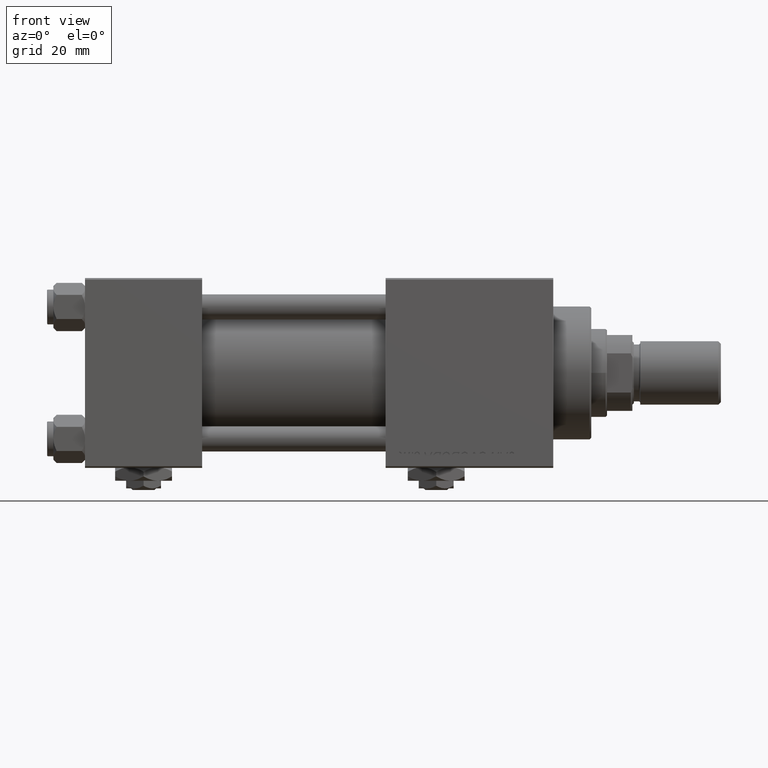
[diagram: clean part render]
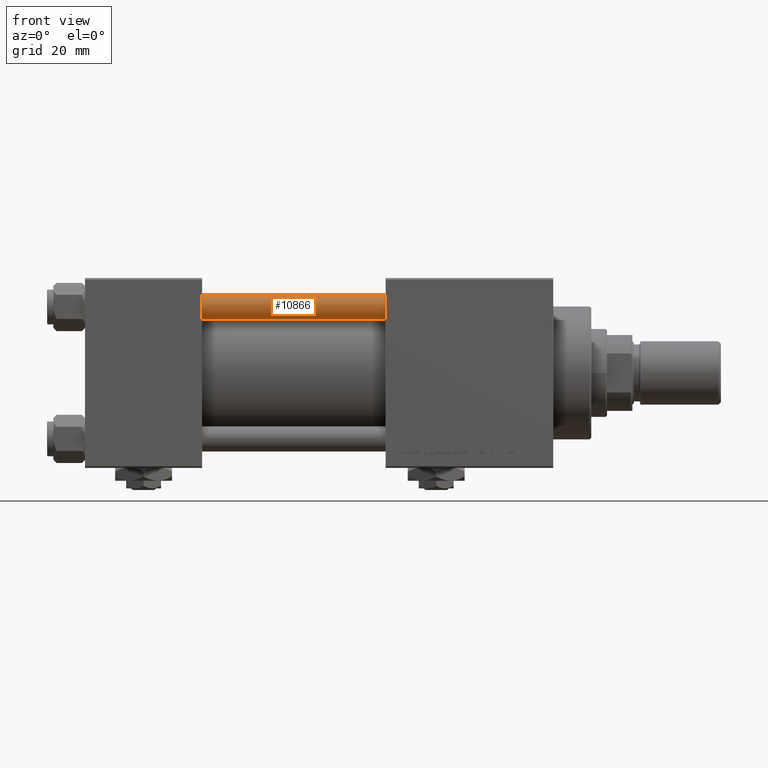
[diagram: same view with one face highlighted and labeled with its STEP entity id]
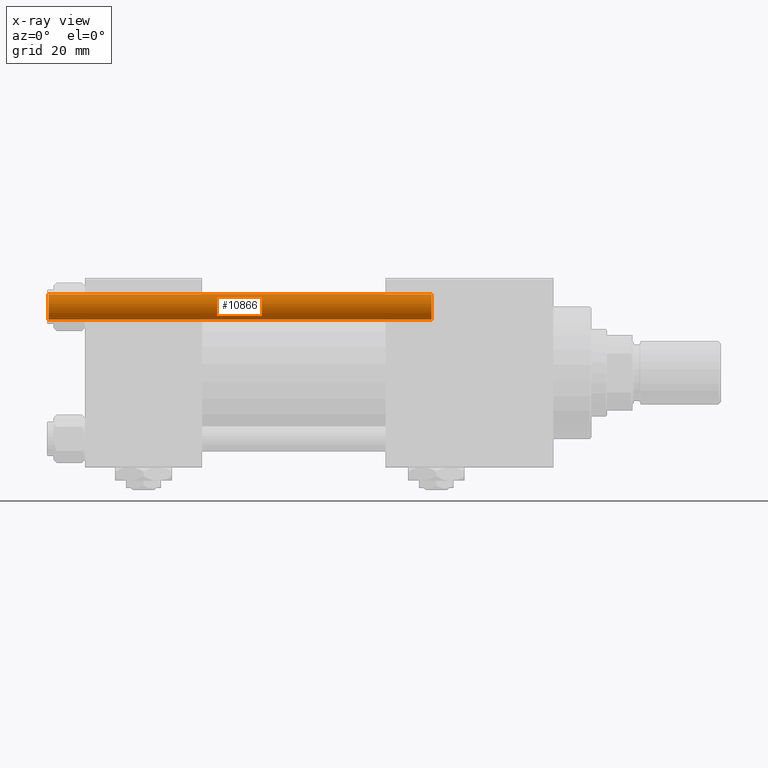
[diagram: x-ray of the same camera — body ghosted, the highlighted face saturated]
A machine part, front view. The second image highlights one B-rep face of the part: STEP entity #10866.
The next image is the same camera in x-ray: the body ghosted, the highlighted face saturated — about 0% of this face is hidden behind the body in this view.
In plain terms, the highlighted cylindrical surface (edge-blend (fillet) strip) has radius 4 mm, axis along (1, 0, -0).
Its self-contained STEP definition (entity closure, byte-faithful):
#334 = DIRECTION ( 'NONE',  ( -0.000000000000000000, -0.000000000000000000, -1.000000000000000000 ) ) ;
#1388 = LINE ( 'NONE', #38197, #12351 ) ;
#2967 = EDGE_CURVE ( 'NONE', #37447, #52659, #36098, .T. ) ;
#3065 = CARTESIAN_POINT ( 'NONE',  ( 0.000000000000000000, 0.000000000000000000, 121.5000000000000426 ) ) ;
#5255 = CARTESIAN_POINT ( 'NONE',  ( -4.000000000000000000, 0.000000000000000000, 121.5000000000000426 ) ) ;
#5290 = ORIENTED_EDGE ( 'NONE', *, *, #31048, .T. ) ;
#5576 = DIRECTION ( 'NONE',  ( -0.000000000000000000, -0.000000000000000000, -1.000000000000000000 ) ) ;
#6194 = CIRCLE ( 'NONE', #20681, 4.000000000000000000 ) ;
#6314 = DIRECTION ( 'NONE',  ( 1.000000000000000000, 0.000000000000000000, 0.000000000000000000 ) ) ;
#6422 = AXIS2_PLACEMENT_3D ( 'NONE', #33350, #5576, #29335 ) ;
#8869 = DIRECTION ( 'NONE',  ( -0.000000000000000000, -0.000000000000000000, -1.000000000000000000 ) ) ;
#9585 = FACE_OUTER_BOUND ( 'NONE', #37872, .T. ) ;
#10585 = DIRECTION ( 'NONE',  ( -0.000000000000000000, -0.000000000000000000, 1.000000000000000000 ) ) ;
#10866 = ADVANCED_FACE ( 'NONE', ( #9585 ), #25861, .T. ) ;
#12351 = VECTOR ( 'NONE', #8869, 1000.000000000000000 ) ;
#13829 = ORIENTED_EDGE ( 'NONE', *, *, #49500, .T. ) ;
#16994 = AXIS2_PLACEMENT_3D ( 'NONE', #42868, #10585, #6314 ) ;
#18843 = VERTEX_POINT ( 'NONE', #28423 ) ;
#20681 = AXIS2_PLACEMENT_3D ( 'NONE', #3065, #40133, #23869 ) ;
#23869 = DIRECTION ( 'NONE',  ( 1.000000000000000000, 0.000000000000000000, 0.000000000000000000 ) ) ;
#23880 = CARTESIAN_POINT ( 'NONE',  ( -4.000000000000000000, 0.000000000000000000, 0.5000000000000559552 ) ) ;
#25861 = CYLINDRICAL_SURFACE ( 'NONE', #6422, 4.000000000000000000 ) ;
#28423 = CARTESIAN_POINT ( 'NONE',  ( 4.000000000000000000, 4.898587196589411843E-16, 0.5000000000000559552 ) ) ;
#29335 = DIRECTION ( 'NONE',  ( -1.000000000000000000, 0.000000000000000000, 0.000000000000000000 ) ) ;
#31048 = EDGE_CURVE ( 'NONE', #18843, #52659, #38269, .T. ) ;
#31904 = ORIENTED_EDGE ( 'NONE', *, *, #39780, .T. ) ;
#33350 = CARTESIAN_POINT ( 'NONE',  ( 0.000000000000000000, 0.000000000000000000, 122.0000000000000000 ) ) ;
#36098 = LINE ( 'NONE', #48598, #43638 ) ;
#37447 = VERTEX_POINT ( 'NONE', #5255 ) ;
#37872 = EDGE_LOOP ( 'NONE', ( #31904, #13829, #5290, #40499 ) ) ;
#38197 = CARTESIAN_POINT ( 'NONE',  ( 4.000000000000000000, 4.898587196589411843E-16, 122.0000000000000000 ) ) ;
#38269 = CIRCLE ( 'NONE', #16994, 4.000000000000000000 ) ;
#39780 = EDGE_CURVE ( 'NONE', #37447, #44665, #6194, .T. ) ;
#40133 = DIRECTION ( 'NONE',  ( 0.000000000000000000, 0.000000000000000000, -1.000000000000000000 ) ) ;
#40499 = ORIENTED_EDGE ( 'NONE', *, *, #2967, .F. ) ;
#41630 = CARTESIAN_POINT ( 'NONE',  ( 4.000000000000000000, 4.898587196589411843E-16, 121.5000000000000426 ) ) ;
#42868 = CARTESIAN_POINT ( 'NONE',  ( 0.000000000000000000, 0.000000000000000000, 0.5000000000000559552 ) ) ;
#43638 = VECTOR ( 'NONE', #334, 1000.000000000000000 ) ;
#44665 = VERTEX_POINT ( 'NONE', #41630 ) ;
#48598 = CARTESIAN_POINT ( 'NONE',  ( -4.000000000000000000, 0.000000000000000000, 122.0000000000000000 ) ) ;
#49500 = EDGE_CURVE ( 'NONE', #44665, #18843, #1388, .T. ) ;
#52659 = VERTEX_POINT ( 'NONE', #23880 ) ;